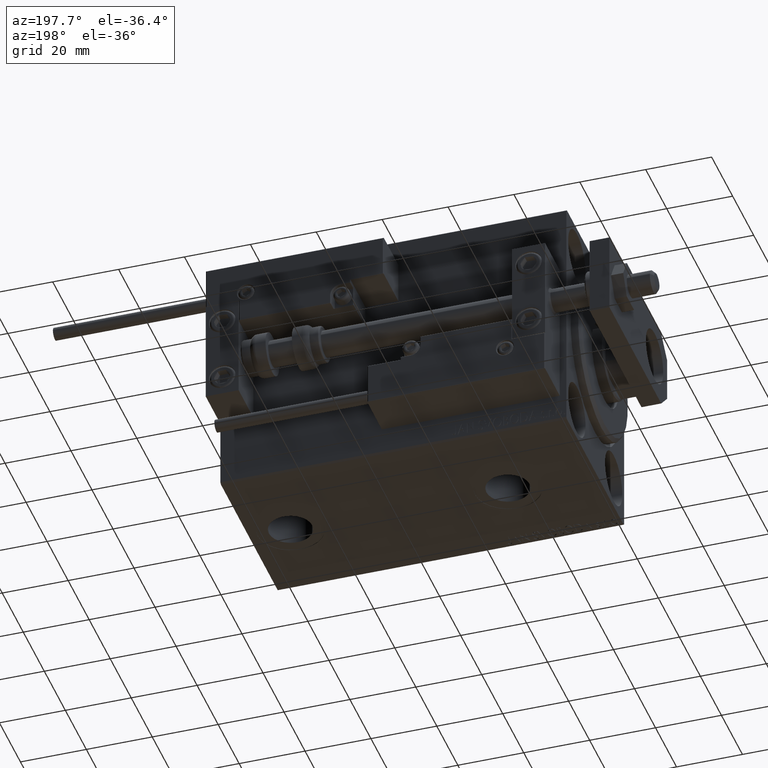
[diagram: clean part render]
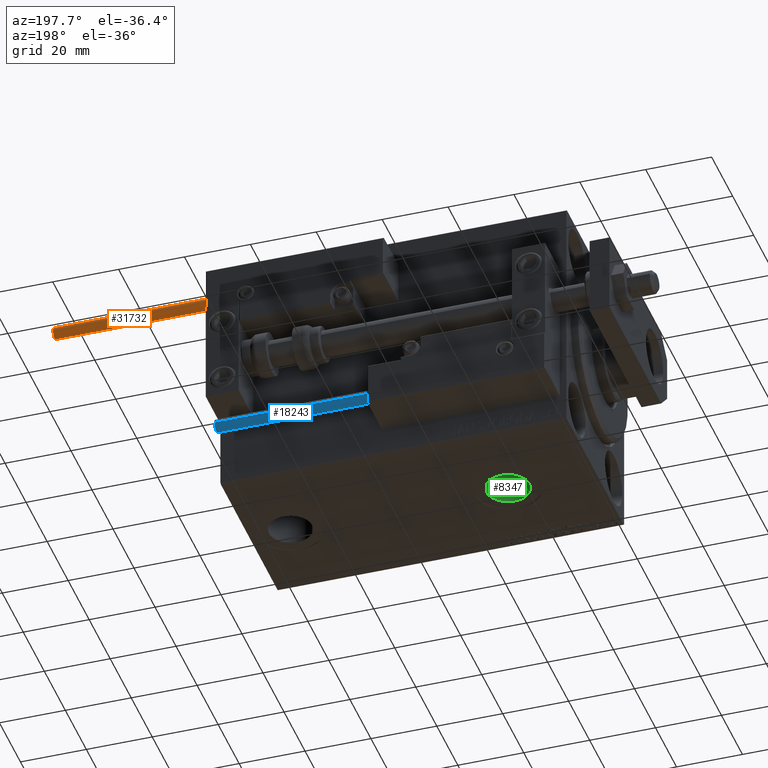
[diagram: same view with three faces highlighted in distinct colors, each labeled with its STEP entity id]
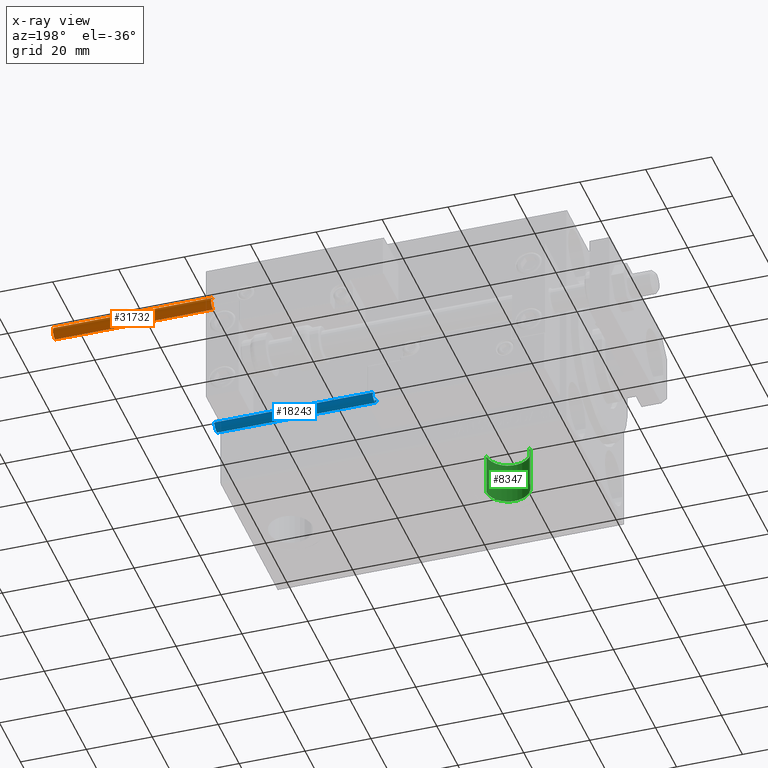
[diagram: x-ray of the same camera — body ghosted, the three highlighted faces saturated]
A machine part, auxiliary view with three faces highlighted in distinct colors.
The next image is the same camera in x-ray (body ghosted, the three faces saturated) — at least one of them is partly hidden behind the body in this view.
Their STEP definitions:

[orange] entity #31732 — the highlighted cylindrical surface (edge-blend (fillet) strip) has radius 1.9 mm, axis along (-1, -0, 0).
#804 = DIRECTION ( 'NONE',  ( 1.000000000000000000, 0.000000000000000000, 0.000000000000000000 ) ) ;
#983 = CARTESIAN_POINT ( 'NONE',  ( 0.000000000000000000, 0.000000000000000000, 48.00000000000000000 ) ) ;
#4139 = ORIENTED_EDGE ( 'NONE', *, *, #10741, .T. ) ;
#4727 = CARTESIAN_POINT ( 'NONE',  ( 0.000000000000000000, 0.000000000000000000, 0.000000000000000000 ) ) ;
#7672 = VECTOR ( 'NONE', #17796, 1000.000000000000000 ) ;
#8238 = CARTESIAN_POINT ( 'NONE',  ( 1.899999999999999467, 2.326828918379970872E-16, 48.00000000000000000 ) ) ;
#9082 = DIRECTION ( 'NONE',  ( -1.000000000000000000, 0.000000000000000000, 0.000000000000000000 ) ) ;
#9188 = ORIENTED_EDGE ( 'NONE', *, *, #32926, .F. ) ;
#9233 = VERTEX_POINT ( 'NONE', #19545 ) ;
#9294 = CIRCLE ( 'NONE', #21761, 1.899999999999999467 ) ;
#10741 = EDGE_CURVE ( 'NONE', #9233, #19357, #43667, .T. ) ;
#11344 = DIRECTION ( 'NONE',  ( 1.000000000000000000, 0.000000000000000000, 0.000000000000000000 ) ) ;
#12481 = CARTESIAN_POINT ( 'NONE',  ( -1.899999999999999467, 0.000000000000000000, 0.000000000000000000 ) ) ;
#12728 = DIRECTION ( 'NONE',  ( -0.000000000000000000, -0.000000000000000000, -1.000000000000000000 ) ) ;
#13490 = AXIS2_PLACEMENT_3D ( 'NONE', #983, #12728, #9082 ) ;
#15197 = CIRCLE ( 'NONE', #44319, 1.899999999999999467 ) ;
#15491 = DIRECTION ( 'NONE',  ( 0.000000000000000000, 0.000000000000000000, 1.000000000000000000 ) ) ;
#17399 = FACE_OUTER_BOUND ( 'NONE', #29983, .T. ) ;
#17796 = DIRECTION ( 'NONE',  ( -0.000000000000000000, -0.000000000000000000, -1.000000000000000000 ) ) ;
#19357 = VERTEX_POINT ( 'NONE', #36904 ) ;
#19545 = CARTESIAN_POINT ( 'NONE',  ( 1.899999999999999467, 2.326828918379970872E-16, 48.00000000000000000 ) ) ;
#20789 = CYLINDRICAL_SURFACE ( 'NONE', #13490, 1.899999999999999467 ) ;
#21761 = AXIS2_PLACEMENT_3D ( 'NONE', #4727, #36502, #804 ) ;
#23820 = CARTESIAN_POINT ( 'NONE',  ( 0.000000000000000000, 0.000000000000000000, 48.00000000000000000 ) ) ;
#27212 = ORIENTED_EDGE ( 'NONE', *, *, #33142, .F. ) ;
#29983 = EDGE_LOOP ( 'NONE', ( #9188, #4139, #51108, #27212 ) ) ;
#31582 = VERTEX_POINT ( 'NONE', #12481 ) ;
#31732 = ADVANCED_FACE ( 'NONE', ( #17399 ), #20789, .T. ) ;
#32926 = EDGE_CURVE ( 'NONE', #9233, #47267, #15197, .T. ) ;
#33142 = EDGE_CURVE ( 'NONE', #47267, #31582, #46196, .T. ) ;
#33371 = EDGE_CURVE ( 'NONE', #19357, #31582, #9294, .T. ) ;
#34205 = CARTESIAN_POINT ( 'NONE',  ( -1.899999999999999467, 0.000000000000000000, 48.00000000000000000 ) ) ;
#36502 = DIRECTION ( 'NONE',  ( 0.000000000000000000, 0.000000000000000000, 1.000000000000000000 ) ) ;
#36589 = DIRECTION ( 'NONE',  ( -0.000000000000000000, -0.000000000000000000, -1.000000000000000000 ) ) ;
#36904 = CARTESIAN_POINT ( 'NONE',  ( 1.899999999999999467, 2.326828918379970872E-16, 0.000000000000000000 ) ) ;
#43667 = LINE ( 'NONE', #8238, #46229 ) ;
#44319 = AXIS2_PLACEMENT_3D ( 'NONE', #23820, #15491, #11344 ) ;
#46196 = LINE ( 'NONE', #34205, #7672 ) ;
#46229 = VECTOR ( 'NONE', #36589, 1000.000000000000000 ) ;
#47267 = VERTEX_POINT ( 'NONE', #48771 ) ;
#48771 = CARTESIAN_POINT ( 'NONE',  ( -1.899999999999999467, 0.000000000000000000, 48.00000000000000000 ) ) ;
#51108 = ORIENTED_EDGE ( 'NONE', *, *, #33371, .T. ) ;

[blue] entity #18243 — the highlighted cylindrical surface (edge-blend (fillet) strip) has radius 1.9 mm, axis along (-1, 0, 0).
#6614 = CARTESIAN_POINT ( 'NONE',  ( 0.000000000000000000, 0.000000000000000000, 48.00000000000000000 ) ) ;
#7672 = VECTOR ( 'NONE', #17796, 1000.000000000000000 ) ;
#8238 = CARTESIAN_POINT ( 'NONE',  ( 1.899999999999999467, 2.326828918379970872E-16, 48.00000000000000000 ) ) ;
#9233 = VERTEX_POINT ( 'NONE', #19545 ) ;
#9736 = AXIS2_PLACEMENT_3D ( 'NONE', #34865, #26793, #51270 ) ;
#10246 = DIRECTION ( 'NONE',  ( 0.000000000000000000, 0.000000000000000000, 1.000000000000000000 ) ) ;
#10741 = EDGE_CURVE ( 'NONE', #9233, #19357, #43667, .T. ) ;
#11398 = EDGE_CURVE ( 'NONE', #47267, #9233, #24480, .T. ) ;
#12481 = CARTESIAN_POINT ( 'NONE',  ( -1.899999999999999467, 0.000000000000000000, 0.000000000000000000 ) ) ;
#14905 = EDGE_LOOP ( 'NONE', ( #50641, #18174, #25686, #24788 ) ) ;
#17796 = DIRECTION ( 'NONE',  ( -0.000000000000000000, -0.000000000000000000, -1.000000000000000000 ) ) ;
#18174 = ORIENTED_EDGE ( 'NONE', *, *, #11398, .F. ) ;
#18243 = ADVANCED_FACE ( 'NONE', ( #22603 ), #39017, .T. ) ;
#19357 = VERTEX_POINT ( 'NONE', #36904 ) ;
#19545 = CARTESIAN_POINT ( 'NONE',  ( 1.899999999999999467, 2.326828918379970872E-16, 48.00000000000000000 ) ) ;
#20482 = CARTESIAN_POINT ( 'NONE',  ( 0.000000000000000000, 0.000000000000000000, 0.000000000000000000 ) ) ;
#22603 = FACE_OUTER_BOUND ( 'NONE', #14905, .T. ) ;
#22928 = AXIS2_PLACEMENT_3D ( 'NONE', #6614, #10246, #26915 ) ;
#24480 = CIRCLE ( 'NONE', #22928, 1.899999999999999467 ) ;
#24788 = ORIENTED_EDGE ( 'NONE', *, *, #29152, .T. ) ;
#25686 = ORIENTED_EDGE ( 'NONE', *, *, #33142, .T. ) ;
#26793 = DIRECTION ( 'NONE',  ( -0.000000000000000000, -0.000000000000000000, -1.000000000000000000 ) ) ;
#26915 = DIRECTION ( 'NONE',  ( 1.000000000000000000, 0.000000000000000000, 0.000000000000000000 ) ) ;
#27511 = AXIS2_PLACEMENT_3D ( 'NONE', #20482, #40539, #49127 ) ;
#29152 = EDGE_CURVE ( 'NONE', #31582, #19357, #39133, .T. ) ;
#31582 = VERTEX_POINT ( 'NONE', #12481 ) ;
#33142 = EDGE_CURVE ( 'NONE', #47267, #31582, #46196, .T. ) ;
#34205 = CARTESIAN_POINT ( 'NONE',  ( -1.899999999999999467, 0.000000000000000000, 48.00000000000000000 ) ) ;
#34865 = CARTESIAN_POINT ( 'NONE',  ( 0.000000000000000000, 0.000000000000000000, 48.00000000000000000 ) ) ;
#36589 = DIRECTION ( 'NONE',  ( -0.000000000000000000, -0.000000000000000000, -1.000000000000000000 ) ) ;
#36904 = CARTESIAN_POINT ( 'NONE',  ( 1.899999999999999467, 2.326828918379970872E-16, 0.000000000000000000 ) ) ;
#39017 = CYLINDRICAL_SURFACE ( 'NONE', #9736, 1.899999999999999467 ) ;
#39133 = CIRCLE ( 'NONE', #27511, 1.899999999999999467 ) ;
#40539 = DIRECTION ( 'NONE',  ( 0.000000000000000000, 0.000000000000000000, 1.000000000000000000 ) ) ;
#43667 = LINE ( 'NONE', #8238, #46229 ) ;
#46196 = LINE ( 'NONE', #34205, #7672 ) ;
#46229 = VECTOR ( 'NONE', #36589, 1000.000000000000000 ) ;
#47267 = VERTEX_POINT ( 'NONE', #48771 ) ;
#48771 = CARTESIAN_POINT ( 'NONE',  ( -1.899999999999999467, 0.000000000000000000, 48.00000000000000000 ) ) ;
#49127 = DIRECTION ( 'NONE',  ( 1.000000000000000000, 0.000000000000000000, 0.000000000000000000 ) ) ;
#50641 = ORIENTED_EDGE ( 'NONE', *, *, #10741, .F. ) ;
#51270 = DIRECTION ( 'NONE',  ( -1.000000000000000000, 0.000000000000000000, 0.000000000000000000 ) ) ;

[green] entity #8347 — the highlighted cylindrical surface (edge-blend (fillet) strip) has radius 6.58 mm, axis along (-0, -0, -1).
#425 = DIRECTION ( 'NONE',  ( -0.000000000000000000, -0.000000000000000000, -1.000000000000000000 ) ) ;
#1185 = CARTESIAN_POINT ( 'NONE',  ( 19.91999999999999815, -2.726986211408916281E-15, -24.49999999999999289 ) ) ;
#2667 = CARTESIAN_POINT ( 'NONE',  ( 33.07999999999999829, -1.921168617569958028E-15, -24.49999999999999289 ) ) ;
#3799 = VERTEX_POINT ( 'NONE', #38973 ) ;
#3994 = VECTOR ( 'NONE', #425, 1000.000000000000000 ) ;
#4140 = CARTESIAN_POINT ( 'NONE',  ( 26.50000000000000000, -2.726986211408916281E-15, -24.49999999999999289 ) ) ;
#4282 = VERTEX_POINT ( 'NONE', #21081 ) ;
#5106 = LINE ( 'NONE', #1185, #3994 ) ;
#6251 = DIRECTION ( 'NONE',  ( -1.000000000000000000, 0.000000000000000000, 0.000000000000000000 ) ) ;
#6517 = DIRECTION ( 'NONE',  ( 0.000000000000000000, 0.000000000000000000, -1.000000000000000000 ) ) ;
#7561 = DIRECTION ( 'NONE',  ( -0.000000000000000000, -0.000000000000000000, -1.000000000000000000 ) ) ;
#7762 = CARTESIAN_POINT ( 'NONE',  ( 19.91999999999999815, -2.726986211408916281E-15, -24.49999999999999289 ) ) ;
#8323 = CYLINDRICAL_SURFACE ( 'NONE', #14535, 6.580000000000002736 ) ;
#8347 = ADVANCED_FACE ( 'NONE', ( #27340 ), #8323, .F. ) ;
#10547 = DIRECTION ( 'NONE',  ( 0.000000000000000000, 0.000000000000000000, -1.000000000000000000 ) ) ;
#11196 = DIRECTION ( 'NONE',  ( -1.000000000000000000, 0.000000000000000000, 0.000000000000000000 ) ) ;
#12536 = VERTEX_POINT ( 'NONE', #44793 ) ;
#14535 = AXIS2_PLACEMENT_3D ( 'NONE', #4140, #7561, #11196 ) ;
#16190 = ORIENTED_EDGE ( 'NONE', *, *, #51429, .F. ) ;
#18304 = DIRECTION ( 'NONE',  ( -0.000000000000000000, -0.000000000000000000, -1.000000000000000000 ) ) ;
#19878 = CIRCLE ( 'NONE', #30680, 6.580000000000002736 ) ;
#20268 = EDGE_CURVE ( 'NONE', #4282, #3799, #22191, .T. ) ;
#21081 = CARTESIAN_POINT ( 'NONE',  ( 33.07999999999999829, -1.921168617569957634E-15, -24.49999999999999289 ) ) ;
#22191 = LINE ( 'NONE', #2667, #25593 ) ;
#24072 = EDGE_CURVE ( 'NONE', #3799, #12536, #26502, .T. ) ;
#24779 = EDGE_CURVE ( 'NONE', #4282, #32611, #19878, .T. ) ;
#24932 = AXIS2_PLACEMENT_3D ( 'NONE', #34507, #10547, #33727 ) ;
#25593 = VECTOR ( 'NONE', #18304, 1000.000000000000000 ) ;
#26502 = CIRCLE ( 'NONE', #24932, 6.580000000000002736 ) ;
#27340 = FACE_OUTER_BOUND ( 'NONE', #33096, .T. ) ;
#30680 = AXIS2_PLACEMENT_3D ( 'NONE', #38008, #6517, #6251 ) ;
#32611 = VERTEX_POINT ( 'NONE', #7762 ) ;
#33096 = EDGE_LOOP ( 'NONE', ( #45606, #36309, #43017, #16190 ) ) ;
#33727 = DIRECTION ( 'NONE',  ( -1.000000000000000000, 0.000000000000000000, 0.000000000000000000 ) ) ;
#34507 = CARTESIAN_POINT ( 'NONE',  ( 26.50000000000000000, -2.726986211408916281E-15, -37.39999999999999858 ) ) ;
#36309 = ORIENTED_EDGE ( 'NONE', *, *, #20268, .T. ) ;
#38008 = CARTESIAN_POINT ( 'NONE',  ( 26.50000000000000000, -2.726986211408916281E-15, -24.49999999999999289 ) ) ;
#38973 = CARTESIAN_POINT ( 'NONE',  ( 33.07999999999999829, -1.921168617569957634E-15, -37.39999999999999858 ) ) ;
#43017 = ORIENTED_EDGE ( 'NONE', *, *, #24072, .T. ) ;
#44793 = CARTESIAN_POINT ( 'NONE',  ( 19.91999999999999815, -2.726986211408916281E-15, -37.39999999999999858 ) ) ;
#45606 = ORIENTED_EDGE ( 'NONE', *, *, #24779, .F. ) ;
#51429 = EDGE_CURVE ( 'NONE', #32611, #12536, #5106, .T. ) ;